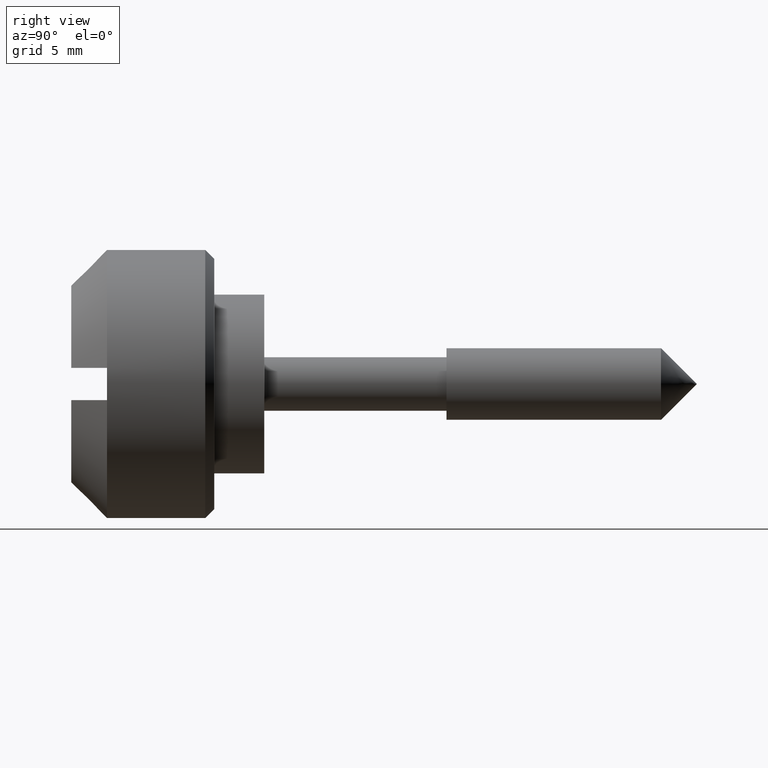
[diagram: clean part render]
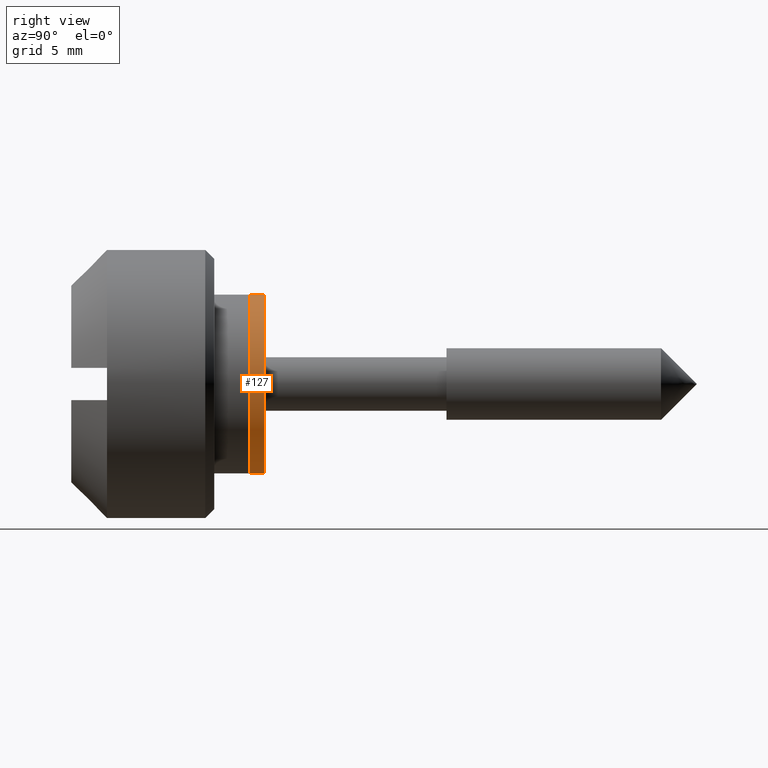
[diagram: same view with one face highlighted and labeled with its STEP entity id]
A machine part, right view. The second image highlights one B-rep face of the part: STEP entity #127.
In plain terms, the highlighted cylindrical surface (partial cylindrical patch) has radius 5 mm, axis along (0, 1, 0).
Its self-contained STEP definition (entity closure, byte-faithful):
#127=ADVANCED_FACE('',(#303),#302,.T.);
#302=CYLINDRICAL_SURFACE('',#615,5.00000000000E+00);
#303=FACE_OUTER_BOUND('',#616,.T.);
#612=CARTESIAN_POINT('',(0.00000000000E+00,1.00000000000E+03,0.00000000000E+00));
#613=DIRECTION('',(-0.00000000000E+00,1.00000000000E+00,-0.00000000000E+00));
#614=DIRECTION('',(1.22464679915E-16,0.00000000000E+00,-1.00000000000E+00));
#615=AXIS2_PLACEMENT_3D('',#612,#613,#614);
#616=EDGE_LOOP('',(#846,#847,#848,#849));
#846=ORIENTED_EDGE('',*,*,#960,.F.);
#847=ORIENTED_EDGE('',*,*,#978,.T.);
#848=ORIENTED_EDGE('',*,*,#948,.T.);
#849=ORIENTED_EDGE('',*,*,#979,.F.);
#948=EDGE_CURVE('',#1092,#1093,#1094,.T.);
#960=EDGE_CURVE('',#1169,#1168,#1176,.T.);
#978=EDGE_CURVE('',#1169,#1092,#1292,.T.);
#979=EDGE_CURVE('',#1168,#1093,#1298,.T.);
#1092=VERTEX_POINT('',#1637);
#1093=VERTEX_POINT('',#1638);
#1094=CIRCLE('',#1642,5.00000000000E+00);
#1168=VERTEX_POINT('',#1686);
#1169=VERTEX_POINT('',#1687);
#1176=CIRCLE('',#1695,5.00000000000E+00);
#1292=(BOUNDED_CURVE() B_SPLINE_CURVE(1,(#1759,#1760),.UNSPECIFIED.,.F.,.F.) B_SPLINE_CURVE_WITH_KNOTS((2,2),(8.33332935974E-02,9.16666633252E-01),.UNSPECIFIED.) CURVE() GEOMETRIC_REPRESENTATION_ITEM() RATIONAL_B_SPLINE_CURVE((1.00000000000E+00,1.00000000000E+00)) REPRESENTATION_ITEM('') );
#1298=(BOUNDED_CURVE() B_SPLINE_CURVE(1,(#1761,#1762),.UNSPECIFIED.,.F.,.F.) B_SPLINE_CURVE_WITH_KNOTS((2,2),(8.33333333334E-02,9.16666666667E-01),.UNSPECIFIED.) CURVE() GEOMETRIC_REPRESENTATION_ITEM() RATIONAL_B_SPLINE_CURVE((7.50000000000E-01,7.50000000000E-01)) REPRESENTATION_ITEM('') );
#1637=CARTESIAN_POINT('',(5.92118946467E-16,8.00000000000E-01,-5.00000000000E+00));
#1638=CARTESIAN_POINT('',(0.00000000000E+00,8.00000000000E-01,5.00000000000E+00));
#1639=CARTESIAN_POINT('',(0.00000000000E+00,8.00000000000E-01,0.00000000000E+00));
#1640=DIRECTION('',(-0.00000000000E+00,-1.00000000000E+00,0.00000000000E+00));
#1641=DIRECTION('',(-1.22460635382E-16,0.00000000000E+00,1.00000000000E+00));
#1642=AXIS2_PLACEMENT_3D('',#1639,#1640,#1641);
#1686=CARTESIAN_POINT('',(0.00000000000E+00,0.00000000000E+00,5.00000000000E+00));
#1687=CARTESIAN_POINT('',(5.92118946467E-16,0.00000000000E+00,-5.00000000000E+00));
#1692=CARTESIAN_POINT('',(0.00000000000E+00,0.00000000000E+00,0.00000000000E+00));
#1693=DIRECTION('',(-0.00000000000E+00,-1.00000000000E+00,0.00000000000E+00));
#1694=DIRECTION('',(-1.22460635382E-16,0.00000000000E+00,1.00000000000E+00));
#1695=AXIS2_PLACEMENT_3D('',#1692,#1693,#1694);
#1759=CARTESIAN_POINT('',(6.12323399574E-16,-3.81465210669E-08,-5.00000000000E+00));
#1760=CARTESIAN_POINT('',(6.12323399574E-16,7.99999967922E-01,-5.00000000000E+00));
#1761=CARTESIAN_POINT('',(-2.96059473233E-16,0.00000000000E+00,5.00000000000E+00));
#1762=CARTESIAN_POINT('',(-2.96059473233E-16,8.00000000000E-01,5.00000000000E+00));